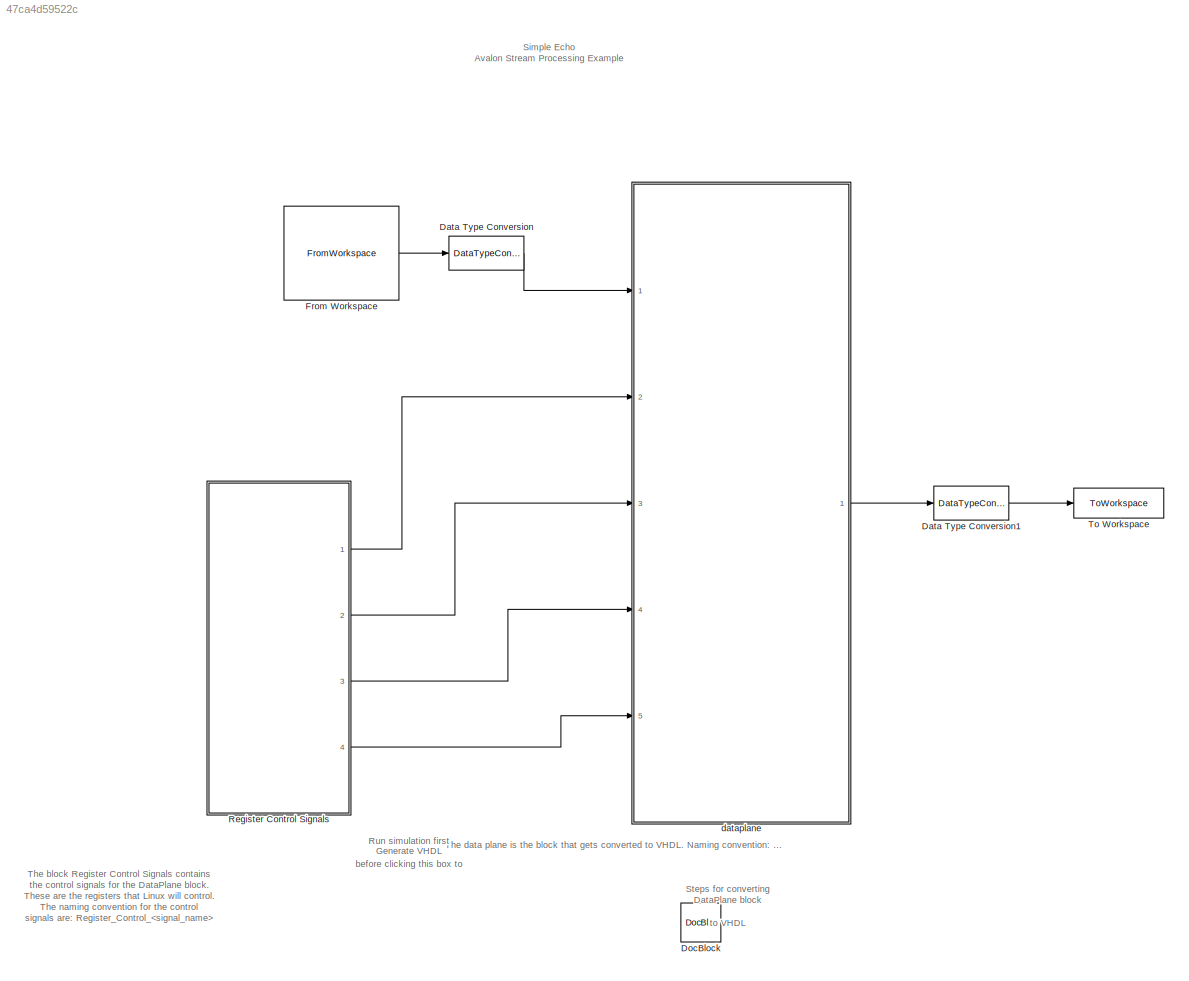
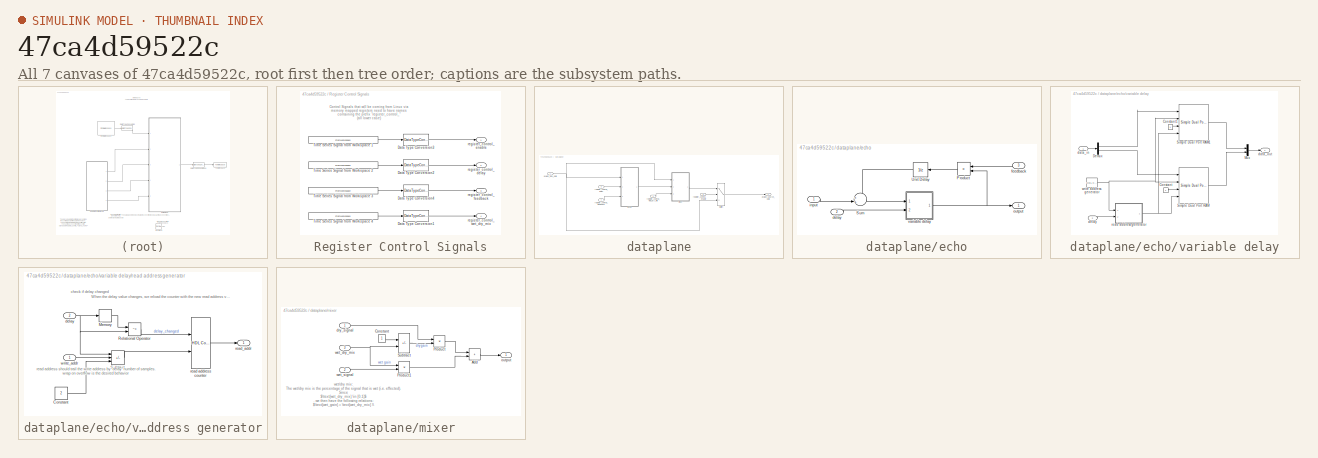
[diagram: thumbnail index - all 7 canvases of the model, root first then tree order]
MODEL slx_47ca4d59522c
KIND model
CONFIG AbsTol = auto
CONFIG EnableMultiTasking = off
CONFIG FixedStep = auto
CONFIG InitFcn = initCallback
CONFIG MaxStep = auto
CONFIG MinStep = auto
CONFIG RelTol = 1e-3
CONFIG SampleTimeConstraint = Unconstrained
CONFIG Solver = FixedStepDiscrete
CONFIG SolverName = FixedStepDiscrete
CONFIG StartTime = 0.0
CONFIG StopFcn = stopCallback\n
CONFIG StopTime = stopTime
BLOCK [DataTypeConversion] Data Type Conversion
  OutDataTypeStr = fixdt(config.system.audioIn.signed, config.system.audioIn.wordLength, config.system.audioIn.fractionLength)
  RndMeth = Floor
  SaturateOnIntegerOverflow = off
BLOCK [DataTypeConversion] Data Type Conversion1
  OutDataTypeStr = double
  RndMeth = Floor
  SaturateOnIntegerOverflow = off
BLOCK [Reference] DocBlock  REF=simulink/Model-Wide
Utilities/DocBlock
  Ports = []
  SourceBlock = simulink/Model-Wide\nUtilities/DocBlock
  SourceProductBaseCode = SL
  SourceType = DocBlock
  UserDataPersistent = on
BLOCK [FromWorkspace] From Workspace
  OutputAfterFinalValue = Setting to zero
  SampleTime = 1 / config.system.sampleClockFrequency
  VariableName = testSignal.asTimeSeries
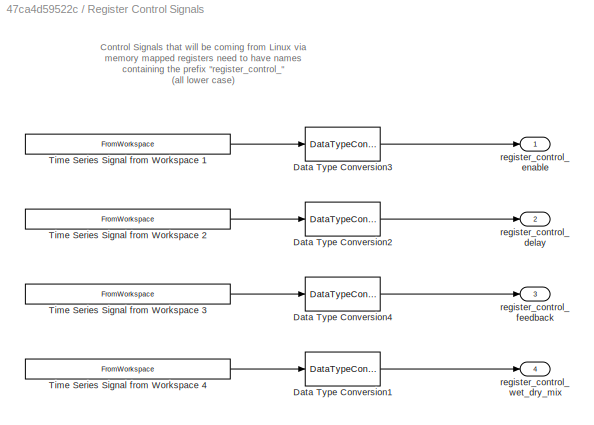
BLOCK [SubSystem] Register Control Signals
  Ports = [0, 4]
  RequestExecContextInheritance = off
BLOCK [DataTypeConversion] Register Control Signals/Data Type Conversion1
  OutDataTypeStr = mp.register{4}.dataType
  RndMeth = Floor
  SaturateOnIntegerOverflow = off
BLOCK [DataTypeConversion] Register Control Signals/Data Type Conversion2
  OutDataTypeStr = mp.register{2}.dataType
  RndMeth = Floor
  SaturateOnIntegerOverflow = off
BLOCK [DataTypeConversion] Register Control Signals/Data Type Conversion3
  OutDataTypeStr = mp.register{1}.dataType
  RndMeth = Floor
  SaturateOnIntegerOverflow = off
BLOCK [DataTypeConversion] Register Control Signals/Data Type Conversion4
  OutDataTypeStr = mp.register{3}.dataType
  RndMeth = Floor
  SaturateOnIntegerOverflow = off
BLOCK [FromWorkspace] Register Control Signals/Time Series Signal from Workspace 1
  OutDataTypeStr = double
  SampleTime = 1 / config.system.sampleClockFrequency
  VariableName = mp.register{1}.timeseries
BLOCK [FromWorkspace] Register Control Signals/Time Series Signal from Workspace 2
  OutDataTypeStr = double
  SampleTime = 1 / config.system.sampleClockFrequency
  VariableName = mp.register{2}.timeseries
BLOCK [FromWorkspace] Register Control Signals/Time Series Signal from Workspace 3
  OutDataTypeStr = double
  SampleTime = 1 / config.system.sampleClockFrequency
  VariableName = mp.register{3}.timeseries
BLOCK [FromWorkspace] Register Control Signals/Time Series Signal from Workspace 4
  OutDataTypeStr = double
  SampleTime = 1 / config.system.sampleClockFrequency
  VariableName = mp.register{4}.timeseries
BLOCK [Outport] Register Control Signals/register_control_delay
  Port = 2
  VectorParamsAs1DForOutWhenUnconnected = off
BLOCK [Outport] Register Control Signals/register_control_enable
  VectorParamsAs1DForOutWhenUnconnected = off
BLOCK [Outport] Register Control Signals/register_control_feedback
  Port = 3
  VectorParamsAs1DForOutWhenUnconnected = off
BLOCK [Outport] Register Control Signals/register_control_wet_dry_mix
  Port = 4
  VectorParamsAs1DForOutWhenUnconnected = off
BLOCK [ToWorkspace] To Workspace
  FixptAsFi = on
  MaxDataPoints = inf
  Ports = [1]
  SampleTime = -1
  SaveFormat = Timeseries
  VariableName = dataOut
BLOCK [SubSystem] dataplane
  Ports = [5, 1]
  RequestExecContextInheritance = off
  TreatAsAtomicUnit = on
BLOCK [Switch] dataplane/Switch
  Criteria = u2 ~= 0
  InputSameDT = off
  SaturateOnIntegerOverflow = off
BLOCK [Inport] dataplane/avalon_sink_data
BLOCK [Outport] dataplane/avalon_source_data
  VectorParamsAs1DForOutWhenUnconnected = off
BLOCK [SubSystem] dataplane/echo
  Ports = [3, 1]
  RequestExecContextInheritance = off
BLOCK [Product] dataplane/echo/Product
  NameLocation = top
  OutDataTypeStr = fixdt(1,mp.W_bits,mp.F_bits)
  Ports = [2, 1]
BLOCK [Sum] dataplane/echo/Sum
  Inputs = ++|
  Ports = [2, 1]
BLOCK [UnitDelay] dataplane/echo/Unit Delay
  HasFrameUpgradeWarning = on
  SampleTime = -1
BLOCK [Inport] dataplane/echo/delay
  Port = 2
BLOCK [Inport] dataplane/echo/feedback
  NameLocation = top
  Port = 3
BLOCK [Inport] dataplane/echo/input
BLOCK [Outport] dataplane/echo/output
  VectorParamsAs1DForOutWhenUnconnected = off
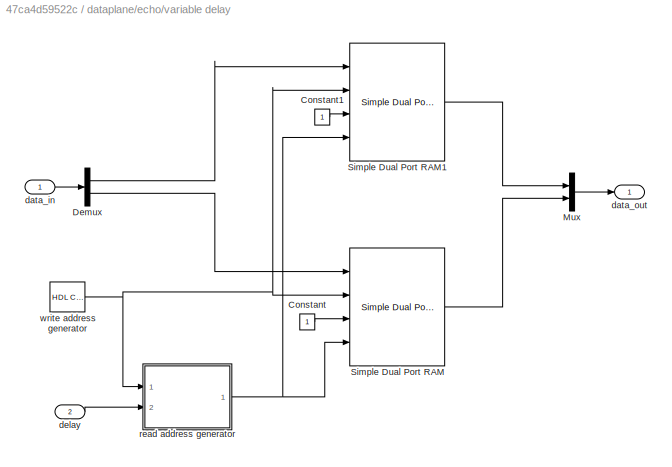
BLOCK [SubSystem] dataplane/echo/variable delay
  Ports = [2, 1]
  RequestExecContextInheritance = off
BLOCK [Constant] dataplane/echo/variable delay/Constant
  OutDataTypeStr = Inherit: Inherit via back propagation
  SampleTime = -1
BLOCK [Constant] dataplane/echo/variable delay/Constant1
  OutDataTypeStr = Inherit: Inherit via back propagation
  SampleTime = -1
BLOCK [Demux] dataplane/echo/variable delay/Demux
  Outputs = 2
  Ports = [1, 2]
BLOCK [Mux] dataplane/echo/variable delay/Mux
  DisplayOption = bar
  Inputs = 2
  Ports = [2, 1]
BLOCK [Reference] dataplane/echo/variable delay/Simple Dual Port RAM  REF=hdlsllib/HDL RAMs/Simple Dual Port RAM
  Ports = [4, 1]
  SourceBlock = hdlsllib/HDL RAMs/Simple Dual Port RAM
  SourceProductBaseCode = SL
  SourceType = Simple Dual-port RAM
BLOCK [Reference] dataplane/echo/variable delay/Simple Dual Port RAM1  REF=hdlsllib/HDL RAMs/Simple Dual Port RAM
  Ports = [4, 1]
  SourceBlock = hdlsllib/HDL RAMs/Simple Dual Port RAM
  SourceProductBaseCode = SL
  SourceType = Simple Dual-port RAM
BLOCK [Inport] dataplane/echo/variable delay/data_in
BLOCK [Outport] dataplane/echo/variable delay/data_out
  VectorParamsAs1DForOutWhenUnconnected = off
BLOCK [Inport] dataplane/echo/variable delay/delay
  Port = 2
BLOCK [SubSystem] dataplane/echo/variable delay/read address generator
  Ports = [2, 1]
  RequestExecContextInheritance = off
BLOCK [Constant] dataplane/echo/variable delay/read address generator/Constant
  OutDataTypeStr = Inherit: Inherit via back propagation
  SampleTime = -1
  Value = 2
BLOCK [Memory] dataplane/echo/variable delay/read address generator/Memory
  InheritSampleTime = on
BLOCK [RelationalOperator] dataplane/echo/variable delay/read address generator/Relational Operator
  InputSameDT = off
  Operator = ~=
  OutDataTypeStr = boolean
  Ports = [2, 1]
BLOCK [Sum] dataplane/echo/variable delay/read address generator/Subtract
  IconShape = rectangular
  InputSameDT = on
  Inputs = -++
  OutDataTypeStr = Inherit: Same as first input
  Ports = [3, 1]
BLOCK [Inport] dataplane/echo/variable delay/read address generator/delay
  Port = 2
BLOCK [Reference] dataplane/echo/variable delay/read address generator/read address counter  REF=hdlsllib/Sources/HDL Counter
  Ports = [2, 1]
  SourceBlock = hdlsllib/Sources/HDL Counter
  SourceProductBaseCode = SL
  SourceType = HDL Counter
BLOCK [Outport] dataplane/echo/variable delay/read address generator/read_addr
  VectorParamsAs1DForOutWhenUnconnected = off
BLOCK [Inport] dataplane/echo/variable delay/read address generator/write_addr
BLOCK [Reference] dataplane/echo/variable delay/write address generator  REF=hdlsllib/Sources/HDL Counter
  Ports = [0, 1]
  SourceBlock = hdlsllib/Sources/HDL Counter
  SourceProductBaseCode = SL
  SourceType = HDL Counter
BLOCK [SubSystem] dataplane/mixer
  Ports = [3, 1]
  RequestExecContextInheritance = off
BLOCK [Sum] dataplane/mixer/Add
  IconShape = rectangular
  OutDataTypeStr = fixdt(1,mp.W_bits,mp.F_bits)
  Ports = [2, 1]
BLOCK [Constant] dataplane/mixer/Constant
  OutDataTypeStr = Inherit: Inherit via back propagation
  SampleTime = -1
BLOCK [Product] dataplane/mixer/Product
  Ports = [2, 1]
BLOCK [Product] dataplane/mixer/Product1
  Ports = [2, 1]
BLOCK [Sum] dataplane/mixer/Subtract
  IconShape = rectangular
  InputSameDT = on
  Inputs = +-
  OutDataTypeStr = Inherit: Same as first input
  Ports = [2, 1]
BLOCK [Inport] dataplane/mixer/dry_signal
BLOCK [Outport] dataplane/mixer/output
  VectorParamsAs1DForOutWhenUnconnected = off
BLOCK [Inport] dataplane/mixer/wet_dry_mix
  Port = 3
BLOCK [Inport] dataplane/mixer/wet_signal
  Port = 2
BLOCK [Inport] dataplane/register_control_delay
  Port = 3
BLOCK [Inport] dataplane/register_control_enable
  Port = 2
BLOCK [Inport] dataplane/register_control_feedback
  Port = 4
BLOCK [Inport] dataplane/register_control_wet_dry_mix
  Port = 5
ANNOTATION (root): Steps for converting DataPlane block to VHDL
ANNOTATION (root): Run simulation first before clicking this box to Generate VHDL
ANNOTATION (root): Simple Echo Avalon Stream Processing Example
ANNOTATION (root): The block Register Control Signals contains the control signals for the DataPlane block. These are the registers that Linux will control. The naming convention for the control signals are: Register_Control_
ANNOTATION (root): The data plane is the block that gets converted to VHDL. Naming convention: _dataplane
ANNOTATION Register Control Signals: Control Signals that will be coming from Linux via memory mapped registers need to have names containing the prefix "register_control_" (all lower case)
ANNOTATION dataplane/echo/variable delay/read address generator: When the delay value changes, we reload the counter with the new read address value
ANNOTATION dataplane/echo/variable delay/read address generator: check if delay changed
ANNOTATION dataplane/echo/variable delay/read address generator: read address should trail the write address by "delay" number of samples. wrap on overflow is the desired behavior
ANNOTATION dataplane/mixer: wet/dry mix: The wet/dry mix is the percentage of the signal that is wet (i.e. effected). Since $\text{wet_dry_mix} \in [0,1]$ , we then have the following relations: $\text{wet_gain} = \text{wet_dry_mix} \\ \text{dry_gain} = 1 - \text{wet_dry_mix}$
LINE Data Type Conversion1:1 -> To Workspace:1
LINE Data Type Conversion:1 -> dataplane:1
LINE From Workspace:1 -> Data Type Conversion:1
LINE Register Control Signals/Data Type Conversion1:1 -> Register Control Signals/register_control_wet_dry_mix:1
LINE Register Control Signals/Data Type Conversion2:1 -> Register Control Signals/register_control_delay:1
LINE Register Control Signals/Data Type Conversion3:1 -> Register Control Signals/register_control_enable:1
LINE Register Control Signals/Data Type Conversion4:1 -> Register Control Signals/register_control_feedback:1
LINE Register Control Signals/Time Series Signal from Workspace 1:1 -> Register Control Signals/Data Type Conversion3:1
LINE Register Control Signals/Time Series Signal from Workspace 2:1 -> Register Control Signals/Data Type Conversion2:1
LINE Register Control Signals/Time Series Signal from Workspace 3:1 -> Register Control Signals/Data Type Conversion4:1
LINE Register Control Signals/Time Series Signal from Workspace 4:1 -> Register Control Signals/Data Type Conversion1:1
LINE Register Control Signals:1 -> dataplane:2
LINE Register Control Signals:2 -> dataplane:3
LINE Register Control Signals:3 -> dataplane:4
LINE Register Control Signals:4 -> dataplane:5
LINE dataplane/Switch:1 -> dataplane/avalon_source_data:1
NET dataplane/avalon_sink_data:1 -> dataplane/Switch:3, dataplane/echo:1, dataplane/mixer:1
LINE dataplane/echo/Product:1 -> dataplane/echo/Unit Delay:1
LINE dataplane/echo/Sum:1 -> dataplane/echo/variable delay:1
LINE dataplane/echo/Unit Delay:1 -> dataplane/echo/Sum:1
LINE dataplane/echo/delay:1 -> dataplane/echo/variable delay:2
LINE dataplane/echo/feedback:1 -> dataplane/echo/Product:1
LINE dataplane/echo/input:1 -> dataplane/echo/Sum:2
LINE dataplane/echo/variable delay/Constant1:1 -> dataplane/echo/variable delay/Simple Dual Port RAM1:3
LINE dataplane/echo/variable delay/Constant:1 -> dataplane/echo/variable delay/Simple Dual Port RAM:3
LINE dataplane/echo/variable delay/Demux:1 -> dataplane/echo/variable delay/Simple Dual Port RAM1:1
LINE dataplane/echo/variable delay/Demux:2 -> dataplane/echo/variable delay/Simple Dual Port RAM:1
LINE dataplane/echo/variable delay/Mux:1 -> dataplane/echo/variable delay/data_out:1
LINE dataplane/echo/variable delay/Simple Dual Port RAM1:1 -> dataplane/echo/variable delay/Mux:1
LINE dataplane/echo/variable delay/Simple Dual Port RAM:1 -> dataplane/echo/variable delay/Mux:2
LINE dataplane/echo/variable delay/data_in:1 -> dataplane/echo/variable delay/Demux:1
LINE dataplane/echo/variable delay/delay:1 -> dataplane/echo/variable delay/read address generator:2
LINE dataplane/echo/variable delay/read address generator/Constant:1 -> dataplane/echo/variable delay/read address generator/Subtract:3
LINE dataplane/echo/variable delay/read address generator/Memory:1 -> dataplane/echo/variable delay/read address generator/Relational Operator:1
LINE dataplane/echo/variable delay/read address generator/Relational Operator:1 -> dataplane/echo/variable delay/read address generator/read address counter:1
LINE dataplane/echo/variable delay/read address generator/Subtract:1 -> dataplane/echo/variable delay/read address generator/read address counter:2
NET dataplane/echo/variable delay/read address generator/delay:1 -> dataplane/echo/variable delay/read address generator/Memory:1, dataplane/echo/variable delay/read address generator/Relational Operator:2, dataplane/echo/variable delay/read address generator/Subtract:1
LINE dataplane/echo/variable delay/read address generator/read address counter:1 -> dataplane/echo/variable delay/read address generator/read_addr:1
LINE dataplane/echo/variable delay/read address generator/write_addr:1 -> dataplane/echo/variable delay/read address generator/Subtract:2
NET dataplane/echo/variable delay/read address generator:1 -> dataplane/echo/variable delay/Simple Dual Port RAM1:4, dataplane/echo/variable delay/Simple Dual Port RAM:4
NET dataplane/echo/variable delay/write address generator:1 -> dataplane/echo/variable delay/Simple Dual Port RAM1:2, dataplane/echo/variable delay/Simple Dual Port RAM:2, dataplane/echo/variable delay/read address generator:1
NET dataplane/echo/variable delay:1 -> dataplane/echo/Product:2, dataplane/echo/output:1
LINE dataplane/echo:1 -> dataplane/mixer:2
LINE dataplane/mixer/Add:1 -> dataplane/mixer/output:1
LINE dataplane/mixer/Constant:1 -> dataplane/mixer/Subtract:1
LINE dataplane/mixer/Product1:1 -> dataplane/mixer/Add:2
LINE dataplane/mixer/Product:1 -> dataplane/mixer/Add:1
LINE dataplane/mixer/Subtract:1 -> dataplane/mixer/Product:2
LINE dataplane/mixer/dry_signal:1 -> dataplane/mixer/Product:1
NET dataplane/mixer/wet_dry_mix:1 -> dataplane/mixer/Product1:1, dataplane/mixer/Subtract:2
LINE dataplane/mixer/wet_signal:1 -> dataplane/mixer/Product1:2
LINE dataplane/mixer:1 -> dataplane/Switch:1
LINE dataplane/register_control_delay:1 -> dataplane/echo:2
LINE dataplane/register_control_enable:1 -> dataplane/Switch:2
LINE dataplane/register_control_feedback:1 -> dataplane/echo:3
LINE dataplane/register_control_wet_dry_mix:1 -> dataplane/mixer:3
LINE dataplane:1 -> Data Type Conversion1:1
note: NET lines group one-source signal fan-out (src -> all destinations, sorted); 1:1 wires keep LINE
